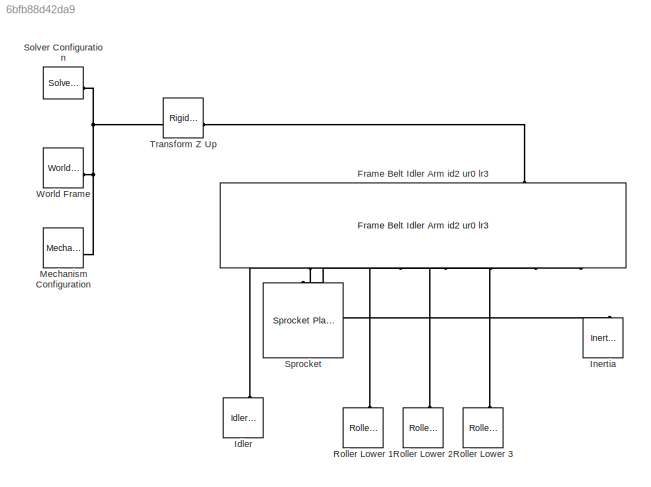
MODEL slx_6bfb88d42da9
KIND model
CONFIG AbsTol = 1e-3
CONFIG EnableMultiTasking = on
CONFIG SolverName = VariableStepAuto
BLOCK [Reference] Frame Belt Idler Arm id2 ur0 lr3  REF=sm_trackV_lib_frame_idlerArm_i2u0l3/Frame Belt
Idler Arm
id2 ur0 lr3
  NameLocation = left
  SourceBlock = sm_trackV_lib_frame_idlerArm_i2u0l3/Frame Belt\nIdler Arm\nid2 ur0 lr3
  SourceType = Frame for Sprocket, Rollers (3), Fixed Idler, Idler Arm
BLOCK [Reference] Idler  REF=sm_trackV_lib_belt_underc_elem/Idler
Rubber Track
Planar
  NameLocation = left
  SourceBlock = sm_trackV_lib_belt_underc_elem/Idler\nRubber Track\nPlanar
  SourceType = Idler, Belt Track, Planar Contact
BLOCK [Reference] Inertia  REF=sm_lib/Body Elements/Inertia
  NameLocation = right
  SourceBlock = sm_lib/Body Elements/Inertia
  SourceType = Inertia
BLOCK [Reference] Mechanism Configuration  REF=sm_lib/Utilities/Mechanism
Configuration
  SourceBlock = sm_lib/Utilities/Mechanism\nConfiguration
  SourceType = Mechanism\nConfiguration
BLOCK [Reference] Roller Lower 1  REF=sm_trackV_lib_belt_underc_elem/Roller Lower
Rubber Track
Planar
  SourceBlock = sm_trackV_lib_belt_underc_elem/Roller Lower\nRubber Track\nPlanar
  SourceType = Lower Roller, Belt Track, Planar Contact
BLOCK [Reference] Roller Lower 2  REF=sm_trackV_lib_belt_underc_elem/Roller Lower
Rubber Track
Planar
  SourceBlock = sm_trackV_lib_belt_underc_elem/Roller Lower\nRubber Track\nPlanar
  SourceType = Lower Roller, Belt Track, Planar Contact
BLOCK [Reference] Roller Lower 3  REF=sm_trackV_lib_belt_underc_elem/Roller Lower
Rubber Track
Planar
  SourceBlock = sm_trackV_lib_belt_underc_elem/Roller Lower\nRubber Track\nPlanar
  SourceType = Lower Roller, Belt Track, Planar Contact
BLOCK [Reference] Solver Configuration  REF=nesl_utility/Solver
Configuration
  SourceBlock = nesl_utility/Solver\nConfiguration
  SourceType = Solver\nConfiguration
BLOCK [Reference] Sprocket  REF=sm_trackV_lib_belt_underc_elem/Sprocket
Planar
t21
  SourceBlock = sm_trackV_lib_belt_underc_elem/Sprocket\nPlanar\nt21
  SourceType = Sprocket Wheel, Belt Track, Planar Contact
BLOCK [Reference] Transform Z Up  REF=sm_lib/Frames and
Transforms/Rigid
Transform
  SourceBlock = sm_lib/Frames and\nTransforms/Rigid\nTransform
  SourceType = Rigid\nTransform
BLOCK [Reference] World Frame  REF=sm_lib/Frames and
Transforms/World Frame
  SourceBlock = sm_lib/Frames and\nTransforms/World Frame
  SourceType = World Frame
PLINE Frame Belt Idler Arm id2 ur0 lr3:LConn2 -- Transform Z Up:RConn1
PLINE Frame Belt Idler Arm id2 ur0 lr3:RConn1 -- Inertia:RConn1
PLINE Frame Belt Idler Arm id2 ur0 lr3:RConn3 -- Roller Lower 3:LConn1
PLINE Frame Belt Idler Arm id2 ur0 lr3:RConn4 -- Roller Lower 2:LConn1
PLINE Frame Belt Idler Arm id2 ur0 lr3:RConn5 -- Roller Lower 1:LConn1
PLINE Frame Belt Idler Arm id2 ur0 lr3:RConn6 -- Sprocket:LConn1
PLINE Frame Belt Idler Arm id2 ur0 lr3:RConn7 -- Idler:LConn1
PNET net1: Mechanism Configuration:RConn1 -- Solver Configuration:RConn1 -- Transform Z Up:LConn1 -- World Frame:RConn1
note: PNET lines group multi-terminal physical nets as a canonical sorted terminal list (undirected conserving connections); 2-terminal nets keep the pairwise PLINE form
